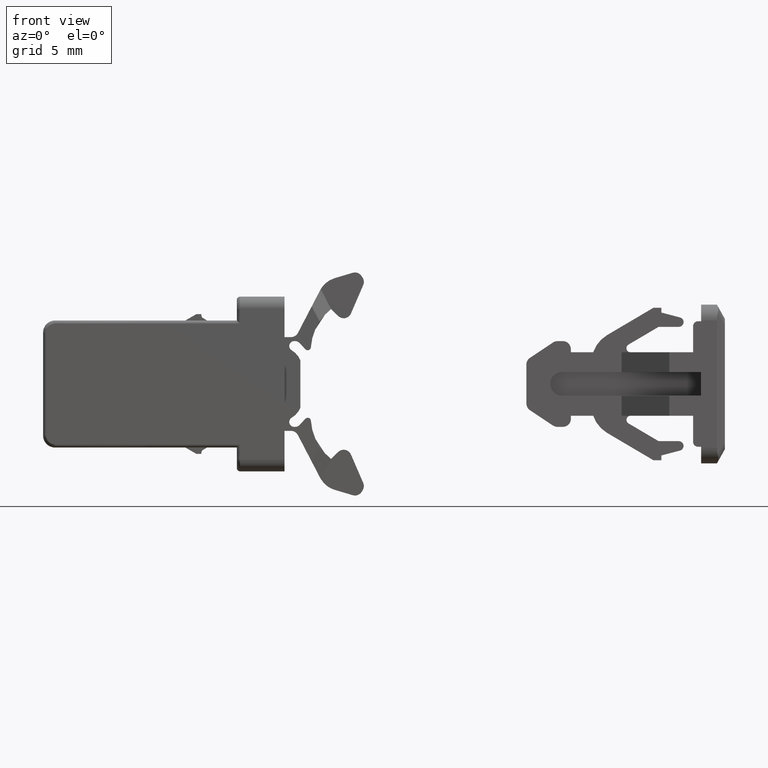
[diagram: clean part render]
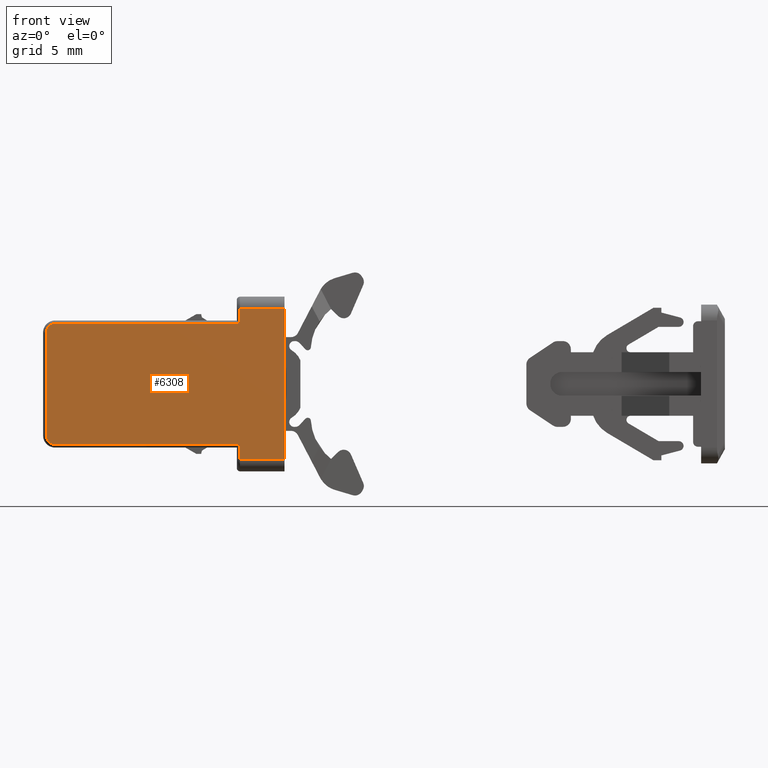
[diagram: same view with one face highlighted and labeled with its STEP entity id]
A machine part, front view. The second image highlights one B-rep face of the part: STEP entity #6308.
In plain terms, the highlighted face is a freeform B-spline surface patch.
Its self-contained STEP definition (entity closure, byte-faithful):
#3147=CARTESIAN_POINT('',(-2.800000000000000,-3.500000000000000,3.800000000000000));
#3148=VERTEX_POINT('',#3147);
#3164=CARTESIAN_POINT('',(-2.800000000000000,-3.500000000000000,4.749999999999890));
#3165=VERTEX_POINT('',#3164);
#3166=CARTESIAN_POINT('',(-2.800000000000000,-3.500000000000000,4.749999999999890));
#3167=CARTESIAN_POINT('',(-2.800000000000000,-3.500000000000000,3.800000000000000));
#3168=QUASI_UNIFORM_CURVE('',1,(#3166,#3167),.UNSPECIFIED.,.F.,.U.);
#3169=EDGE_CURVE('',#3165,#3148,#3168,.T.);
#3599=CARTESIAN_POINT('',(-2.800000000000000,-3.500000000000000,-4.749999999999901));
#3600=VERTEX_POINT('',#3599);
#3662=CARTESIAN_POINT('',(-2.800000000000000,-3.500000000000000,-3.799999999999900));
#3663=VERTEX_POINT('',#3662);
#3683=CARTESIAN_POINT('',(-2.800000000000000,-3.500000000000000,-3.799999999999900));
#3684=CARTESIAN_POINT('',(-2.800000000000000,-3.500000000000000,-4.749999999999901));
#3685=QUASI_UNIFORM_CURVE('',1,(#3683,#3684),.UNSPECIFIED.,.F.,.U.);
#3686=EDGE_CURVE('',#3663,#3600,#3685,.T.);
#3966=CARTESIAN_POINT('',(-14.449999999999999,-3.500000000000000,-3.799999999999900));
#3967=VERTEX_POINT('',#3966);
#3968=CARTESIAN_POINT('',(-14.449999999999999,-3.500000000000000,-3.799999999999900));
#3969=CARTESIAN_POINT('',(-2.800000000000000,-3.500000000000000,-3.799999999999900));
#3970=QUASI_UNIFORM_CURVE('',1,(#3968,#3969),.UNSPECIFIED.,.F.,.U.);
#3971=EDGE_CURVE('',#3967,#3663,#3970,.T.);
#4006=CARTESIAN_POINT('',(-15.0,-3.500000000000000,-3.249999999999900));
#4007=VERTEX_POINT('',#4006);
#4037=CARTESIAN_POINT('',(-15.0,-3.500000000000000,-3.249999999999900));
#4038=CARTESIAN_POINT('',(-14.999999999999995,-3.499999999999999,-3.799999999999901));
#4039=CARTESIAN_POINT('',(-14.449999999999999,-3.500000000000000,-3.799999999999900));
#4047=(BOUNDED_CURVE()B_SPLINE_CURVE(2,(#4037,#4038,#4039),.UNSPECIFIED.,.F.,.U.)CURVE()GEOMETRIC_REPRESENTATION_ITEM()QUASI_UNIFORM_CURVE()RATIONAL_B_SPLINE_CURVE((1.0,0.707106781186548,1.0))REPRESENTATION_ITEM(''));
#4048=EDGE_CURVE('',#4007,#3967,#4047,.T.);
#4067=CARTESIAN_POINT('',(-15.0,-3.500000000000000,3.250000000000000));
#4068=VERTEX_POINT('',#4067);
#4090=CARTESIAN_POINT('',(-15.0,-3.500000000000000,3.250000000000000));
#4091=CARTESIAN_POINT('',(-15.0,-3.500000000000000,-3.249999999999900));
#4092=QUASI_UNIFORM_CURVE('',1,(#4090,#4091),.UNSPECIFIED.,.F.,.U.);
#4093=EDGE_CURVE('',#4068,#4007,#4092,.T.);
#4115=CARTESIAN_POINT('',(-14.449999999999999,-3.500000000000000,3.800000000000000));
#4116=VERTEX_POINT('',#4115);
#4146=CARTESIAN_POINT('',(-14.449999999999999,-3.500000000000000,3.800000000000000));
#4147=CARTESIAN_POINT('',(-14.999999999999995,-3.499999999999999,3.800000000000000));
#4148=CARTESIAN_POINT('',(-15.0,-3.500000000000000,3.250000000000000));
#4156=(BOUNDED_CURVE()B_SPLINE_CURVE(2,(#4146,#4147,#4148),.UNSPECIFIED.,.F.,.U.)CURVE()GEOMETRIC_REPRESENTATION_ITEM()QUASI_UNIFORM_CURVE()RATIONAL_B_SPLINE_CURVE((1.0,0.707106781186548,1.0))REPRESENTATION_ITEM(''));
#4157=EDGE_CURVE('',#4116,#4068,#4156,.T.);
#4176=CARTESIAN_POINT('',(-2.800000000000000,-3.500000000000000,3.800000000000000));
#4177=CARTESIAN_POINT('',(-14.449999999999999,-3.500000000000000,3.800000000000000));
#4178=QUASI_UNIFORM_CURVE('',1,(#4176,#4177),.UNSPECIFIED.,.F.,.U.);
#4179=EDGE_CURVE('',#3148,#4116,#4178,.T.);
#6129=CARTESIAN_POINT('',(0.0,-3.500000000000000,4.749999999999890));
#6130=VERTEX_POINT('',#6129);
#6131=CARTESIAN_POINT('',(0.0,-3.500000000000000,4.749999999999890));
#6132=CARTESIAN_POINT('',(-2.800000000000000,-3.500000000000000,4.749999999999890));
#6133=QUASI_UNIFORM_CURVE('',1,(#6131,#6132),.UNSPECIFIED.,.F.,.U.);
#6134=EDGE_CURVE('',#6130,#3165,#6133,.T.);
#6256=CARTESIAN_POINT('',(0.0,-3.500000000000000,-4.749999999999901));
#6257=VERTEX_POINT('',#6256);
#6258=CARTESIAN_POINT('',(-2.800000000000000,-3.500000000000000,-4.749999999999901));
#6259=CARTESIAN_POINT('',(0.0,-3.500000000000000,-4.749999999999901));
#6260=QUASI_UNIFORM_CURVE('',1,(#6258,#6259),.UNSPECIFIED.,.F.,.U.);
#6261=EDGE_CURVE('',#3600,#6257,#6260,.T.);
#6287=CARTESIAN_POINT('',(-15.749249970927091,-3.500000000000000,5.224524981587036));
#6288=CARTESIAN_POINT('',(0.749250373258442,-3.500000000000000,5.224524981587036));
#6289=CARTESIAN_POINT('',(-15.749249970927091,-3.500000000000000,-5.224525236396903));
#6290=CARTESIAN_POINT('',(0.749250373258442,-3.500000000000000,-5.224525236396903));
#6291=B_SPLINE_SURFACE_WITH_KNOTS('',1,1,((#6287,#6289),(#6288,#6290)),.UNSPECIFIED.,.F.,.F.,.U.,(2,2),(2,2),(0.0,16.498500344185530),(0.0,10.449050217983940),.UNSPECIFIED.);
#6292=ORIENTED_EDGE('',*,*,#3971,.T.);
#6293=ORIENTED_EDGE('',*,*,#3686,.T.);
#6294=ORIENTED_EDGE('',*,*,#6261,.T.);
#6295=CARTESIAN_POINT('',(0.0,-3.500000000000000,4.749999999999890));
#6296=CARTESIAN_POINT('',(0.0,-3.500000000000000,-4.749999999999901));
#6297=QUASI_UNIFORM_CURVE('',1,(#6295,#6296),.UNSPECIFIED.,.F.,.U.);
#6298=EDGE_CURVE('',#6130,#6257,#6297,.T.);
#6299=ORIENTED_EDGE('',*,*,#6298,.F.);
#6300=ORIENTED_EDGE('',*,*,#6134,.T.);
#6301=ORIENTED_EDGE('',*,*,#3169,.T.);
#6302=ORIENTED_EDGE('',*,*,#4179,.T.);
#6303=ORIENTED_EDGE('',*,*,#4157,.T.);
#6304=ORIENTED_EDGE('',*,*,#4093,.T.);
#6305=ORIENTED_EDGE('',*,*,#4048,.T.);
#6306=EDGE_LOOP('',(#6292,#6293,#6294,#6299,#6300,#6301,#6302,#6303,#6304,#6305));
#6307=FACE_OUTER_BOUND('',#6306,.T.);
#6308=ADVANCED_FACE('',(#6307),#6291,.F.);